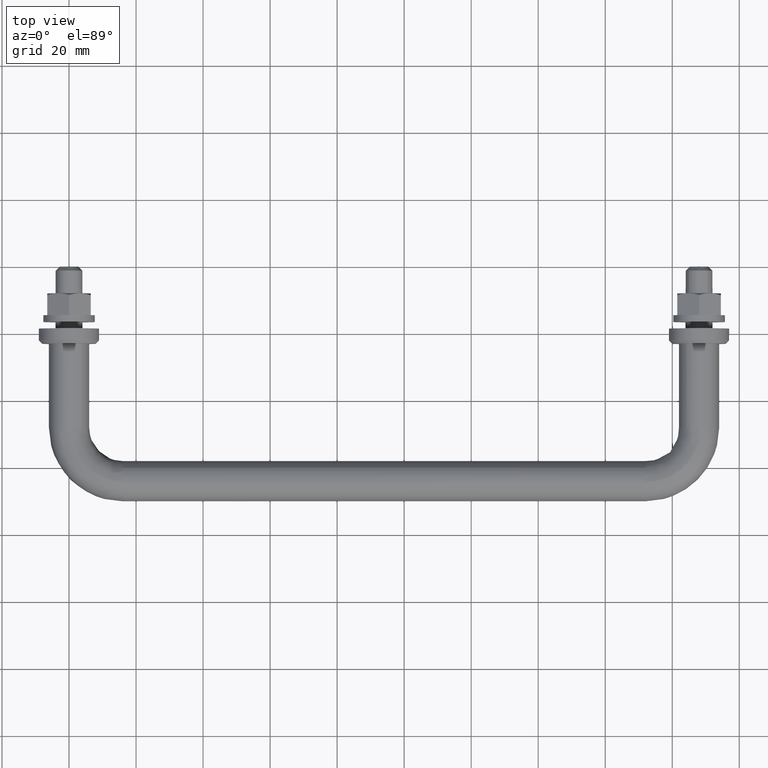
[diagram: clean part render]
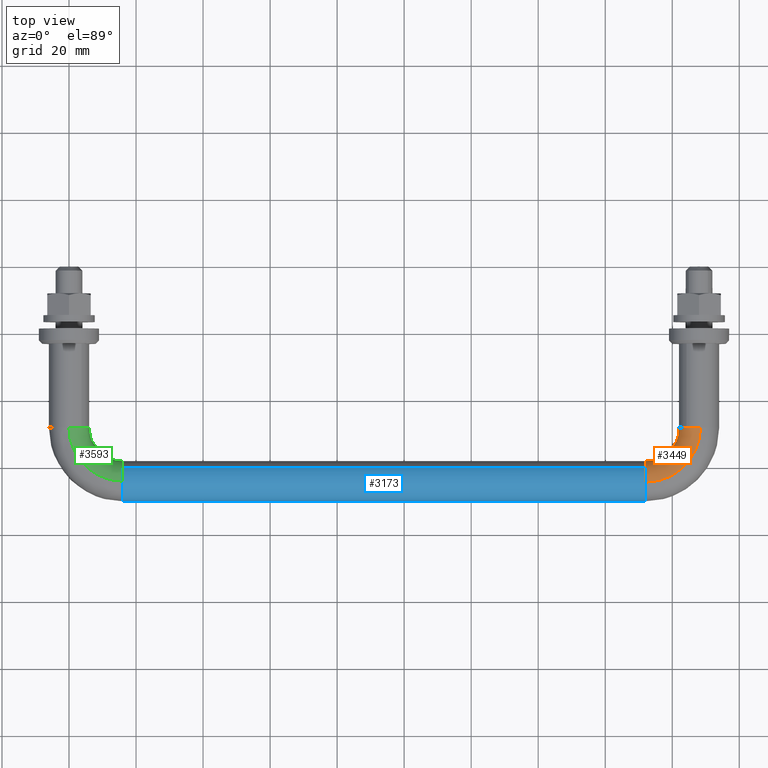
[diagram: same view with three faces highlighted in distinct colors, each labeled with its STEP entity id]
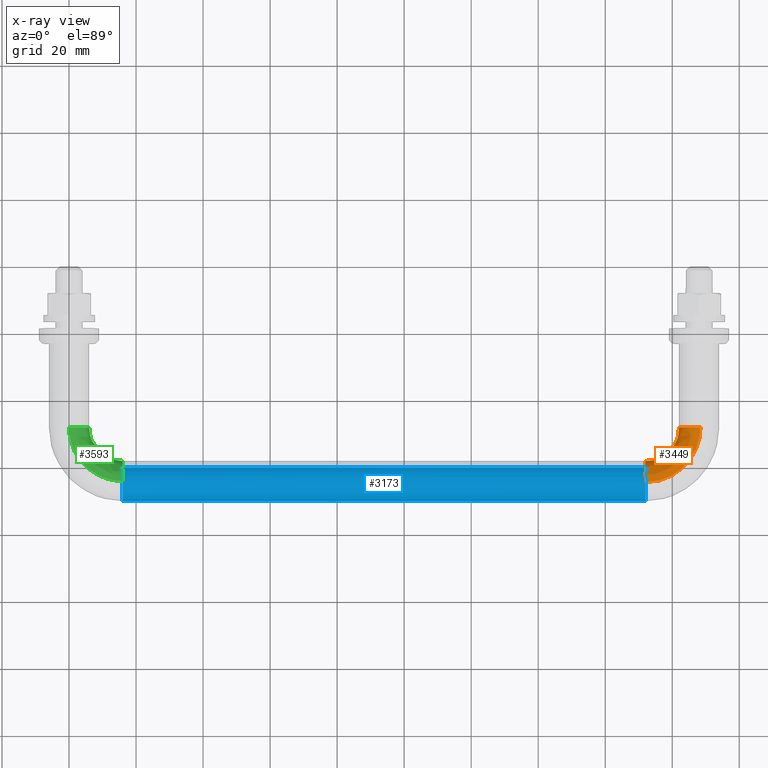
[diagram: x-ray of the same camera — body ghosted, the three highlighted faces saturated]
A machine part, top view with three faces highlighted in distinct colors.
The next image is the same camera in x-ray (body ghosted, the three faces saturated) — at least one of them is partly hidden behind the body in this view.
Their STEP definitions:

[orange] entity #3449 — the highlighted face is a freeform B-spline surface patch.
#2734=CARTESIAN_POINT('',(187.924611933301410,-27.999977257682200,-5.999526367917516));
#2735=VERTEX_POINT('',#2734);
#2753=CARTESIAN_POINT('',(182.0,-28.0,0.0));
#2754=VERTEX_POINT('',#2753);
#2755=CARTESIAN_POINT('',(182.0,-28.0,0.0));
#2756=CARTESIAN_POINT('',(182.000000000000030,-27.999988628841098,-5.925079651262719));
#2757=CARTESIAN_POINT('',(187.924611933301410,-27.999977257682197,-5.999526367917516));
#2765=(BOUNDED_CURVE()B_SPLINE_CURVE(2,(#2755,#2756,#2757),.UNSPECIFIED.,.F.,.U.)B_SPLINE_CURVE_WITH_KNOTS((3,3),(0.0,0.247784535489267),.UNSPECIFIED.)CURVE()GEOMETRIC_REPRESENTATION_ITEM()RATIONAL_B_SPLINE_CURVE((1.0,0.709702359313410,0.994854847036074))REPRESENTATION_ITEM(''));
#2766=EDGE_CURVE('',#2754,#2735,#2765,.T.);
#2768=CARTESIAN_POINT('',(184.264912180171190,-28.0,4.695648941111987));
#2769=VERTEX_POINT('',#2768);
#2770=CARTESIAN_POINT('',(184.264912180171190,-28.0,4.695648941111987));
#2771=CARTESIAN_POINT('',(182.000000000000030,-27.999999999999996,2.894056444900479));
#2772=CARTESIAN_POINT('',(182.0,-28.0,0.0));
#2780=(BOUNDED_CURVE()B_SPLINE_CURVE(2,(#2770,#2771,#2772),.UNSPECIFIED.,.F.,.U.)B_SPLINE_CURVE_WITH_KNOTS((3,3),(0.857863877391648,1.0),.UNSPECIFIED.)CURVE()GEOMETRIC_REPRESENTATION_ITEM()RATIONAL_B_SPLINE_CURVE((0.856305618644005,0.833477174158305,1.0))REPRESENTATION_ITEM(''));
#2781=EDGE_CURVE('',#2769,#2754,#2780,.T.);
#2895=CARTESIAN_POINT('',(188.418399515030300,-28.000000001144201,5.985394042652700));
#2896=VERTEX_POINT('',#2895);
#2897=CARTESIAN_POINT('',(188.418399515030250,-28.000000001144205,5.985394042652700));
#2898=CARTESIAN_POINT('',(188.209454700846320,-27.999999999999993,6.0));
#2899=CARTESIAN_POINT('',(188.0,-28.0,6.0));
#2900=CARTESIAN_POINT('',(185.904706199466230,-28.000000000000004,6.000000000000001));
#2901=CARTESIAN_POINT('',(184.264912180171140,-28.0,4.695648941111987));
#2909=(BOUNDED_CURVE()B_SPLINE_CURVE(2,(#2897,#2898,#2899,#2900,#2901),.UNSPECIFIED.,.F.,.U.)B_SPLINE_CURVE_WITH_KNOTS((3,2,3),(0.737833686214604,0.750000000000000,0.857863877391649),.UNSPECIFIED.)CURVE()GEOMETRIC_REPRESENTATION_ITEM()RATIONAL_B_SPLINE_CURVE((0.972879875709116,0.985746276777203,1.0,0.873629607028242,0.856305618644005))REPRESENTATION_ITEM(''));
#2910=EDGE_CURVE('',#2896,#2769,#2909,.T.);
#2950=CARTESIAN_POINT('',(172.000000000030700,-43.924603760731657,-5.999526265223295));
#2951=VERTEX_POINT('',#2950);
#3023=CARTESIAN_POINT('',(172.0,-40.024283343943772,4.493737539146402));
#3024=VERTEX_POINT('',#3023);
#3030=CARTESIAN_POINT('',(172.0,-38.0,0.0));
#3031=VERTEX_POINT('',#3030);
#3032=CARTESIAN_POINT('',(171.999999999999970,-40.024283343943765,4.493737539146402));
#3033=CARTESIAN_POINT('',(172.000000000000030,-37.999999999999993,2.702805839870650));
#3034=CARTESIAN_POINT('',(172.0,-38.0,0.0));
#3042=(BOUNDED_CURVE()B_SPLINE_CURVE(2,(#3032,#3033,#3034),.UNSPECIFIED.,.F.,.U.)B_SPLINE_CURVE_WITH_KNOTS((3,3),(0.865779765950736,1.0),.UNSPECIFIED.)CURVE()GEOMETRIC_REPRESENTATION_ITEM()RATIONAL_B_SPLINE_CURVE((0.854350179329492,0.842751214477665,1.0))REPRESENTATION_ITEM(''));
#3043=EDGE_CURVE('',#3024,#3031,#3042,.T.);
#3045=CARTESIAN_POINT('',(172.0,-38.0,0.0));
#3046=CARTESIAN_POINT('',(171.999999999999940,-37.999999999999993,-5.925071579506664));
#3047=CARTESIAN_POINT('',(172.000000000030750,-43.924603760731657,-5.999526265223295));
#3055=(BOUNDED_CURVE()B_SPLINE_CURVE(2,(#3045,#3046,#3047),.UNSPECIFIED.,.F.,.U.)B_SPLINE_CURVE_WITH_KNOTS((3,3),(0.0,0.247784295923591),.UNSPECIFIED.)CURVE()GEOMETRIC_REPRESENTATION_ITEM()RATIONAL_B_SPLINE_CURVE((1.0,0.709702639982057,0.994854295648301))REPRESENTATION_ITEM(''));
#3056=EDGE_CURVE('',#3031,#2951,#3055,.T.);
#3094=CARTESIAN_POINT('',(172.000000001094800,-44.418399514859161,5.985394042664661));
#3095=VERTEX_POINT('',#3094);
#3109=CARTESIAN_POINT('',(172.000000001094860,-44.418399514859168,5.985394042664661));
#3110=CARTESIAN_POINT('',(172.000000000000030,-44.209454700674584,6.000000000000001));
#3111=CARTESIAN_POINT('',(172.0,-44.0,6.0));
#3112=CARTESIAN_POINT('',(172.000000000000030,-41.726806121522053,6.000000000000001));
#3113=CARTESIAN_POINT('',(171.999999999999970,-40.024283343943765,4.493737539146402));
#3121=(BOUNDED_CURVE()B_SPLINE_CURVE(2,(#3109,#3110,#3111,#3112,#3113),.UNSPECIFIED.,.F.,.U.)B_SPLINE_CURVE_WITH_KNOTS((3,2,3),(0.737833686224437,0.750000000000000,0.865779765950736),.UNSPECIFIED.)CURVE()GEOMETRIC_REPRESENTATION_ITEM()RATIONAL_B_SPLINE_CURVE((0.972879875729914,0.985746276788723,1.0,0.864355566708882,0.854350179329492))REPRESENTATION_ITEM(''));
#3122=EDGE_CURVE('',#3095,#3024,#3121,.T.);
#3386=CARTESIAN_POINT('',(170.858311015844380,-44.378656167966355,5.985394066133807));
#3387=CARTESIAN_POINT('',(189.691463637596770,-45.691438038754328,5.985394066133804));
#3388=CARTESIAN_POINT('',(188.378654515969630,-26.858287316566017,5.985394066133806));
#3389=CARTESIAN_POINT('',(170.870222679992420,-44.207771580152766,5.997368459328783));
#3390=CARTESIAN_POINT('',(189.506882043079800,-45.506856711319521,5.997368459328781));
#3391=CARTESIAN_POINT('',(188.207769945391850,-26.870199227977380,5.997368459328779));
#3392=CARTESIAN_POINT('',(170.882162468940070,-44.036483514307562,5.999526265222895));
#3393=CARTESIAN_POINT('',(189.321864630333690,-45.321839566286258,5.999526265222895));
#3394=CARTESIAN_POINT('',(188.036481896823260,-26.882139264772281,5.999526265222895));
#3395=CARTESIAN_POINT('',(171.299352535549500,-38.051479934072887,6.074922504523009));
#3396=CARTESIAN_POINT('',(182.857141754125050,-38.857126044273798,6.074922504523014));
#3397=CARTESIAN_POINT('',(182.051478920252630,-27.299337991449018,6.074922504523009));
#3398=CARTESIAN_POINT('',(171.304595376518110,-37.976266201821545,0.075396239300117));
#3399=CARTESIAN_POINT('',(182.775899374070920,-38.775883781774226,0.075396239300117));
#3400=CARTESIAN_POINT('',(181.976265195587560,-27.304580941248997,0.075396239300117));
#3401=CARTESIAN_POINT('',(171.309838217486740,-37.901052469570175,-5.924130025922775));
#3402=CARTESIAN_POINT('',(182.694656994016920,-38.694641519274647,-5.924130025922779));
#3403=CARTESIAN_POINT('',(181.901051470922430,-27.309823891048975,-5.924130025922776));
#3404=CARTESIAN_POINT('',(170.892648150877420,-43.886056049804850,-5.999526265222895));
#3405=CARTESIAN_POINT('',(189.159379870225620,-45.159355041287107,-5.999526265222895));
#3406=CARTESIAN_POINT('',(187.886054447493140,-26.892625164372237,-5.999526265222895));
#3414=(BOUNDED_SURFACE()B_SPLINE_SURFACE(2,2,((#3386,#3389,#3392,#3395,#3398,#3401,#3404),(#3387,#3390,#3393,#3396,#3399,#3402,#3405),(#3388,#3391,#3394,#3397,#3400,#3403,#3406)),.UNSPECIFIED.,.F.,.F.,.U.)B_SPLINE_SURFACE_WITH_KNOTS((3,3),(3,2,2,3),(0.0,29.920493368264712),(0.0,0.397644640654330,10.338770137608639,20.279895634562941),.UNSPECIFIED.)GEOMETRIC_REPRESENTATION_ITEM()RATIONAL_B_SPLINE_SURFACE(((0.895729761376907,0.905606519293506,0.916342124834309,0.647951730357230,0.916342124834309,0.647951730357230,0.916342124834309),(0.587799902987867,0.594281274485770,0.601326242921003,0.425201864074870,0.601326242921003,0.425201864074870,0.601326242921003),(0.895730351866127,0.905607116293752,0.916342728911755,0.647952157504489,0.916342728911755,0.647952157504489,0.916342728911755)))REPRESENTATION_ITEM('')SURFACE());
#3415=ORIENTED_EDGE('',*,*,#2910,.T.);
#3416=ORIENTED_EDGE('',*,*,#2781,.T.);
#3417=ORIENTED_EDGE('',*,*,#2766,.T.);
#3418=CARTESIAN_POINT('',(172.000000000030670,-43.924603760731657,-5.999526265223297));
#3419=CARTESIAN_POINT('',(187.924630589315830,-43.924603760648566,-5.999526316570405));
#3420=CARTESIAN_POINT('',(187.924611933301430,-27.999977257682193,-5.999526367917516));
#3428=(BOUNDED_CURVE()B_SPLINE_CURVE(2,(#3418,#3419,#3420),.UNSPECIFIED.,.F.,.U.)B_SPLINE_CURVE_WITH_KNOTS((3,3),(-1.734750791654397,-0.265247724385492),.UNSPECIFIED.)CURVE()GEOMETRIC_REPRESENTATION_ITEM()RATIONAL_B_SPLINE_CURVE((0.889029723575022,0.628638683265943,0.889030249481114))REPRESENTATION_ITEM(''));
#3429=EDGE_CURVE('',#2951,#2735,#3428,.T.);
#3430=ORIENTED_EDGE('',*,*,#3429,.F.);
#3431=ORIENTED_EDGE('',*,*,#3056,.F.);
#3432=ORIENTED_EDGE('',*,*,#3043,.F.);
#3433=ORIENTED_EDGE('',*,*,#3122,.F.);
#3434=CARTESIAN_POINT('',(172.000000001094830,-44.418399514859161,5.985394042664661));
#3435=CARTESIAN_POINT('',(188.418399507164250,-44.418399507263018,5.985394043042593));
#3436=CARTESIAN_POINT('',(188.418399515030250,-28.000000001144198,5.985394042652700));
#3444=(BOUNDED_CURVE()B_SPLINE_CURVE(2,(#3434,#3435,#3436),.UNSPECIFIED.,.F.,.U.)B_SPLINE_CURVE_WITH_KNOTS((3,3),(-1.734750791519822,-0.265249208486429),.UNSPECIFIED.)CURVE()GEOMETRIC_REPRESENTATION_ITEM()RATIONAL_B_SPLINE_CURVE((0.869031711827253,0.614498216582240,0.869031711825088))REPRESENTATION_ITEM(''));
#3445=EDGE_CURVE('',#3095,#2896,#3444,.T.);
#3446=ORIENTED_EDGE('',*,*,#3445,.T.);
#3447=EDGE_LOOP('',(#3415,#3416,#3417,#3430,#3431,#3432,#3433,#3446));
#3448=FACE_OUTER_BOUND('',#3447,.T.);
#3449=ADVANCED_FACE('',(#3448),#3414,.T.);

[blue] entity #3173 — the highlighted face is a freeform B-spline surface patch.
#2952=CARTESIAN_POINT('',(172.0,-48.467998580238500,-4.004620916760366));
#2953=VERTEX_POINT('',#2952);
#2969=CARTESIAN_POINT('',(16.0,-48.467998533679001,-4.004620968707411));
#2970=VERTEX_POINT('',#2969);
#2971=CARTESIAN_POINT('',(16.0,-48.467998533679001,-4.004620968707411));
#2972=CARTESIAN_POINT('',(172.0,-48.467998580238500,-4.004620916760366));
#2973=QUASI_UNIFORM_CURVE('',1,(#2971,#2972),.UNSPECIFIED.,.F.,.U.);
#2974=EDGE_CURVE('',#2970,#2953,#2973,.T.);
#3008=CARTESIAN_POINT('',(16.0,-40.024283299106493,4.493737499477844));
#3009=VERTEX_POINT('',#3008);
#3023=CARTESIAN_POINT('',(172.0,-40.024283343943772,4.493737539146402));
#3024=VERTEX_POINT('',#3023);
#3025=CARTESIAN_POINT('',(16.0,-40.024283299106493,4.493737499477844));
#3026=CARTESIAN_POINT('',(172.0,-40.024283343943772,4.493737539146402));
#3027=QUASI_UNIFORM_CURVE('',1,(#3025,#3026),.UNSPECIFIED.,.F.,.U.);
#3028=EDGE_CURVE('',#3009,#3024,#3027,.T.);
#3061=CARTESIAN_POINT('',(12.099999999496250,-40.024279710705578,4.493734324734011));
#3062=CARTESIAN_POINT('',(12.099999999496250,-44.518014035439599,8.469454614028436));
#3063=CARTESIAN_POINT('',(12.099999999496250,-48.493734324734007,3.975720289294424));
#3064=CARTESIAN_POINT('',(12.099999999496248,-52.034080247159984,-0.025912832602382));
#3065=CARTESIAN_POINT('',(12.099999999496248,-48.467994806516181,-4.004625127142923));
#3066=CARTESIAN_POINT('',(175.997500001134800,-40.024279710705557,4.493734324734011));
#3067=CARTESIAN_POINT('',(175.997500001134740,-44.518014035439563,8.469454614028436));
#3068=CARTESIAN_POINT('',(175.997500001134800,-48.493734324733992,3.975720289294424));
#3069=CARTESIAN_POINT('',(175.997500001134820,-52.034080247159977,-0.025912832602382));
#3070=CARTESIAN_POINT('',(175.997500001134800,-48.467994806516145,-4.004625127142923));
#3078=(BOUNDED_SURFACE()B_SPLINE_SURFACE(2,1,((#3061,#3066),(#3062,#3067),(#3063,#3068),(#3064,#3069),(#3065,#3070)),.UNSPECIFIED.,.F.,.F.,.U.)B_SPLINE_SURFACE_WITH_KNOTS((3,2,3),(2,2),(0.0,9.941125496954280,19.086960954152222),(0.0,163.897500001638600),.UNSPECIFIED.)GEOMETRIC_REPRESENTATION_ITEM()RATIONAL_B_SPLINE_SURFACE(((1.0,1.0),(0.707106781186548,0.707106781186548),(1.0,1.0),(0.730538238691624,0.730538238691624),(0.956886118190660,0.956886118190660)))REPRESENTATION_ITEM('')SURFACE());
#3079=CARTESIAN_POINT('',(172.0,-49.999999999999993,0.0));
#3080=VERTEX_POINT('',#3079);
#3081=CARTESIAN_POINT('',(171.999999999999970,-48.467998580238500,-4.004620916760366));
#3082=CARTESIAN_POINT('',(171.999999999999970,-50.0,-2.295350473769441));
#3083=CARTESIAN_POINT('',(172.0,-49.999999999999993,0.0));
#3091=(BOUNDED_CURVE()B_SPLINE_CURVE(2,(#3081,#3082,#3083),.UNSPECIFIED.,.F.,.U.)B_SPLINE_CURVE_WITH_KNOTS((3,3),(0.383246101980459,0.500000000000000),.UNSPECIFIED.)CURVE()GEOMETRIC_REPRESENTATION_ITEM()RATIONAL_B_SPLINE_CURVE((0.854190709346819,0.863214300000157,1.0))REPRESENTATION_ITEM(''));
#3092=EDGE_CURVE('',#2953,#3080,#3091,.T.);
#3093=ORIENTED_EDGE('',*,*,#3092,.T.);
#3094=CARTESIAN_POINT('',(172.000000001094800,-44.418399514859161,5.985394042664661));
#3095=VERTEX_POINT('',#3094);
#3096=CARTESIAN_POINT('',(172.0,-49.999999999999993,0.0));
#3097=CARTESIAN_POINT('',(172.000000000000030,-49.999999999999993,5.595221073466878));
#3098=CARTESIAN_POINT('',(172.000000001094780,-44.418399514859161,5.985394042664661));
#3106=(BOUNDED_CURVE()B_SPLINE_CURVE(2,(#3096,#3097,#3098),.UNSPECIFIED.,.F.,.U.)B_SPLINE_CURVE_WITH_KNOTS((3,3),(0.500000000000000,0.737833686224436),.UNSPECIFIED.)CURVE()GEOMETRIC_REPRESENTATION_ITEM()RATIONAL_B_SPLINE_CURVE((1.0,0.721360504397826,0.972879875729912))REPRESENTATION_ITEM(''));
#3107=EDGE_CURVE('',#3080,#3095,#3106,.T.);
#3108=ORIENTED_EDGE('',*,*,#3107,.T.);
#3109=CARTESIAN_POINT('',(172.000000001094860,-44.418399514859168,5.985394042664661));
#3110=CARTESIAN_POINT('',(172.000000000000030,-44.209454700674584,6.000000000000001));
#3111=CARTESIAN_POINT('',(172.0,-44.0,6.0));
#3112=CARTESIAN_POINT('',(172.000000000000030,-41.726806121522053,6.000000000000001));
#3113=CARTESIAN_POINT('',(171.999999999999970,-40.024283343943765,4.493737539146402));
#3121=(BOUNDED_CURVE()B_SPLINE_CURVE(2,(#3109,#3110,#3111,#3112,#3113),.UNSPECIFIED.,.F.,.U.)B_SPLINE_CURVE_WITH_KNOTS((3,2,3),(0.737833686224437,0.750000000000000,0.865779765950736),.UNSPECIFIED.)CURVE()GEOMETRIC_REPRESENTATION_ITEM()RATIONAL_B_SPLINE_CURVE((0.972879875729914,0.985746276788723,1.0,0.864355566708882,0.854350179329492))REPRESENTATION_ITEM(''));
#3122=EDGE_CURVE('',#3095,#3024,#3121,.T.);
#3123=ORIENTED_EDGE('',*,*,#3122,.T.);
#3124=ORIENTED_EDGE('',*,*,#3028,.F.);
#3125=CARTESIAN_POINT('',(15.999999999535239,-44.075396242597783,5.999526265181453));
#3126=VERTEX_POINT('',#3125);
#3127=CARTESIAN_POINT('',(15.999999999535246,-44.075396242597783,5.999526265181453));
#3128=CARTESIAN_POINT('',(16.0,-44.037699611249401,6.0));
#3129=CARTESIAN_POINT('',(16.0,-44.0,6.0));
#3130=CARTESIAN_POINT('',(15.999999999999996,-41.726806087292310,6.0));
#3131=CARTESIAN_POINT('',(16.0,-40.024283299106486,4.493737499477844));
#3139=(BOUNDED_CURVE()B_SPLINE_CURVE(2,(#3127,#3128,#3129,#3130,#3131),.UNSPECIFIED.,.F.,.U.)B_SPLINE_CURVE_WITH_KNOTS((3,2,3),(0.747784295728396,0.750000000000000,0.865779767457664),.UNSPECIFIED.)CURVE()GEOMETRIC_REPRESENTATION_ITEM()RATIONAL_B_SPLINE_CURVE((0.994854295199036,0.997404140975804,1.0,0.864355564943408,0.854350179069043))REPRESENTATION_ITEM(''));
#3140=EDGE_CURVE('',#3126,#3009,#3139,.T.);
#3141=ORIENTED_EDGE('',*,*,#3140,.F.);
#3142=CARTESIAN_POINT('',(16.0,-49.999999999999993,0.0));
#3143=VERTEX_POINT('',#3142);
#3144=CARTESIAN_POINT('',(16.0,-49.999999999999993,0.0));
#3145=CARTESIAN_POINT('',(16.000000000000004,-49.999999999999993,5.925071572929852));
#3146=CARTESIAN_POINT('',(15.999999999535245,-44.075396242597783,5.999526265181453));
#3154=(BOUNDED_CURVE()B_SPLINE_CURVE(2,(#3144,#3145,#3146),.UNSPECIFIED.,.F.,.U.)B_SPLINE_CURVE_WITH_KNOTS((3,3),(0.500000000000000,0.747784295728395),.UNSPECIFIED.)CURVE()GEOMETRIC_REPRESENTATION_ITEM()RATIONAL_B_SPLINE_CURVE((1.0,0.709702640210744,0.994854295199034))REPRESENTATION_ITEM(''));
#3155=EDGE_CURVE('',#3143,#3126,#3154,.T.);
#3156=ORIENTED_EDGE('',*,*,#3155,.F.);
#3157=CARTESIAN_POINT('',(16.000000000000004,-48.467998533679001,-4.004620968707411));
#3158=CARTESIAN_POINT('',(16.0,-49.999999999999986,-2.295350513753448));
#3159=CARTESIAN_POINT('',(16.0,-49.999999999999993,0.0));
#3167=(BOUNDED_CURVE()B_SPLINE_CURVE(2,(#3157,#3158,#3159),.UNSPECIFIED.,.F.,.U.)B_SPLINE_CURVE_WITH_KNOTS((3,3),(0.383246100224852,0.500000000000000),.UNSPECIFIED.)CURVE()GEOMETRIC_REPRESENTATION_ITEM()RATIONAL_B_SPLINE_CURVE((0.854190709075447,0.863214297943335,1.0))REPRESENTATION_ITEM(''));
#3168=EDGE_CURVE('',#2970,#3143,#3167,.T.);
#3169=ORIENTED_EDGE('',*,*,#3168,.F.);
#3170=ORIENTED_EDGE('',*,*,#2974,.T.);
#3171=EDGE_LOOP('',(#3093,#3108,#3123,#3124,#3141,#3156,#3169,#3170));
#3172=FACE_OUTER_BOUND('',#3171,.T.);
#3173=ADVANCED_FACE('',(#3172),#3078,.T.);

[green] entity #3593 — the highlighted face is a freeform B-spline surface patch.
#2976=CARTESIAN_POINT('',(15.999999999610340,-43.581600490287009,-5.985394043024395));
#2977=VERTEX_POINT('',#2976);
#2993=CARTESIAN_POINT('',(16.0,-38.0,0.0));
#2994=VERTEX_POINT('',#2993);
#2995=CARTESIAN_POINT('',(16.0,-38.0,0.0));
#2996=CARTESIAN_POINT('',(15.999999999999998,-37.999999999999993,-5.595221083111795));
#2997=CARTESIAN_POINT('',(15.999999999610345,-43.581600490287016,-5.985394043024395));
#3005=(BOUNDED_CURVE()B_SPLINE_CURVE(2,(#2995,#2996,#2997),.UNSPECIFIED.,.F.,.U.)B_SPLINE_CURVE_WITH_KNOTS((3,3),(0.0,0.237833686520174),.UNSPECIFIED.)CURVE()GEOMETRIC_REPRESENTATION_ITEM()RATIONAL_B_SPLINE_CURVE((1.0,0.721360504051347,0.972879876355423))REPRESENTATION_ITEM(''));
#3006=EDGE_CURVE('',#2994,#2977,#3005,.T.);
#3008=CARTESIAN_POINT('',(16.0,-40.024283299106493,4.493737499477844));
#3009=VERTEX_POINT('',#3008);
#3010=CARTESIAN_POINT('',(16.0,-40.024283299106486,4.493737499477844));
#3011=CARTESIAN_POINT('',(16.000000000000004,-37.999999999999993,2.702805803863420));
#3012=CARTESIAN_POINT('',(16.0,-38.0,0.0));
#3020=(BOUNDED_CURVE()B_SPLINE_CURVE(2,(#3010,#3011,#3012),.UNSPECIFIED.,.F.,.U.)B_SPLINE_CURVE_WITH_KNOTS((3,3),(0.865779767457664,1.0),.UNSPECIFIED.)CURVE()GEOMETRIC_REPRESENTATION_ITEM()RATIONAL_B_SPLINE_CURVE((0.854350179069043,0.842751216243140,1.0))REPRESENTATION_ITEM(''));
#3021=EDGE_CURVE('',#3009,#2994,#3020,.T.);
#3125=CARTESIAN_POINT('',(15.999999999535239,-44.075396242597783,5.999526265181453));
#3126=VERTEX_POINT('',#3125);
#3127=CARTESIAN_POINT('',(15.999999999535246,-44.075396242597783,5.999526265181453));
#3128=CARTESIAN_POINT('',(16.0,-44.037699611249401,6.0));
#3129=CARTESIAN_POINT('',(16.0,-44.0,6.0));
#3130=CARTESIAN_POINT('',(15.999999999999996,-41.726806087292310,6.0));
#3131=CARTESIAN_POINT('',(16.0,-40.024283299106486,4.493737499477844));
#3139=(BOUNDED_CURVE()B_SPLINE_CURVE(2,(#3127,#3128,#3129,#3130,#3131),.UNSPECIFIED.,.F.,.U.)B_SPLINE_CURVE_WITH_KNOTS((3,2,3),(0.747784295728396,0.750000000000000,0.865779767457664),.UNSPECIFIED.)CURVE()GEOMETRIC_REPRESENTATION_ITEM()RATIONAL_B_SPLINE_CURVE((0.994854295199036,0.997404140975804,1.0,0.864355564943408,0.854350179069043))REPRESENTATION_ITEM(''));
#3140=EDGE_CURVE('',#3126,#3009,#3139,.T.);
#3192=CARTESIAN_POINT('',(-0.075396246629108,-28.000000001397801,5.999526265130792));
#3193=VERTEX_POINT('',#3192);
#3194=CARTESIAN_POINT('',(3.735087819828864,-28.0,4.695648941111983));
#3195=VERTEX_POINT('',#3194);
#3196=CARTESIAN_POINT('',(-0.075396246629108,-28.000000001397797,5.999526265130792));
#3197=CARTESIAN_POINT('',(-0.037699615281203,-27.999999999999996,5.999999999999999));
#3198=CARTESIAN_POINT('',(3.428898E-015,-28.0,6.0));
#3199=CARTESIAN_POINT('',(2.095293800533723,-28.0,6.0));
#3200=CARTESIAN_POINT('',(3.735087819828863,-28.000000000000004,4.695648941111982));
#3208=(BOUNDED_CURVE()B_SPLINE_CURVE(2,(#3196,#3197,#3198,#3199,#3200),.UNSPECIFIED.,.F.,.U.)B_SPLINE_CURVE_WITH_KNOTS((3,2,3),(0.747784295492051,0.750000000000000,0.857863877391647),.UNSPECIFIED.)CURVE()GEOMETRIC_REPRESENTATION_ITEM()RATIONAL_B_SPLINE_CURVE((0.994854294655062,0.997404140698909,1.0,0.873629607028244,0.856305618644006))REPRESENTATION_ITEM(''));
#3209=EDGE_CURVE('',#3193,#3195,#3208,.T.);
#3306=CARTESIAN_POINT('',(6.000000000000004,-28.0,0.0));
#3307=VERTEX_POINT('',#3306);
#3308=CARTESIAN_POINT('',(3.735087819828864,-28.0,4.695648941111983));
#3309=CARTESIAN_POINT('',(6.000000000000003,-27.999999999999996,2.894056444900473));
#3310=CARTESIAN_POINT('',(6.000000000000004,-28.0,0.0));
#3318=(BOUNDED_CURVE()B_SPLINE_CURVE(2,(#3308,#3309,#3310),.UNSPECIFIED.,.F.,.U.)B_SPLINE_CURVE_WITH_KNOTS((3,3),(0.857863877391648,1.0),.UNSPECIFIED.)CURVE()GEOMETRIC_REPRESENTATION_ITEM()RATIONAL_B_SPLINE_CURVE((0.856305618644005,0.833477174158305,1.0))REPRESENTATION_ITEM(''));
#3319=EDGE_CURVE('',#3195,#3307,#3318,.T.);
#3321=CARTESIAN_POINT('',(0.418399509453649,-28.000000000001169,-5.985394043042524));
#3322=VERTEX_POINT('',#3321);
#3323=CARTESIAN_POINT('',(6.000000000000004,-28.0,0.0));
#3324=CARTESIAN_POINT('',(6.000000000000003,-27.999999999999993,-5.595221083597852));
#3325=CARTESIAN_POINT('',(0.418399509453649,-28.000000000001165,-5.985394043042524));
#3333=(BOUNDED_CURVE()B_SPLINE_CURVE(2,(#3323,#3324,#3325),.UNSPECIFIED.,.F.,.U.)B_SPLINE_CURVE_WITH_KNOTS((3,3),(0.0,0.237833686535077),.UNSPECIFIED.)CURVE()GEOMETRIC_REPRESENTATION_ITEM()RATIONAL_B_SPLINE_CURVE((1.0,0.721360504033886,0.972879876386946))REPRESENTATION_ITEM(''));
#3334=EDGE_CURVE('',#3307,#3322,#3333,.T.);
#3528=CARTESIAN_POINT('',(-0.075396246629108,-28.000000001397801,5.999526265130792));
#3529=CARTESIAN_POINT('',(-0.075396236504506,-44.075396238370594,5.999526265222894));
#3530=CARTESIAN_POINT('',(15.999999999535250,-44.075396242597783,5.999526265181453));
#3538=(BOUNDED_CURVE()B_SPLINE_CURVE(2,(#3528,#3529,#3530),.UNSPECIFIED.,.F.,.U.)B_SPLINE_CURVE_WITH_KNOTS((3,3),(-1.744561813132473,-0.255438186745294),.UNSPECIFIED.)CURVE()GEOMETRIC_REPRESENTATION_ITEM()RATIONAL_B_SPLINE_CURVE((0.894678509977967,0.632633241475806,0.894678510020986))REPRESENTATION_ITEM(''));
#3539=EDGE_CURVE('',#3193,#3126,#3538,.T.);
#3544=CARTESIAN_POINT('',(0.418399509453649,-28.000000000001169,-5.985394043042524));
#3545=CARTESIAN_POINT('',(0.418399509454987,-43.581600489768043,-5.985394043042594));
#3546=CARTESIAN_POINT('',(15.999999999610342,-43.581600490287009,-5.985394043024395));
#3554=(BOUNDED_CURVE()B_SPLINE_CURVE(2,(#3544,#3545,#3546),.UNSPECIFIED.,.F.,.U.)B_SPLINE_CURVE_WITH_KNOTS((3,3),(-1.744561813315432,-0.255438186737073),.UNSPECIFIED.)CURVE()GEOMETRIC_REPRESENTATION_ITEM()RATIONAL_B_SPLINE_CURVE((0.874553433413147,0.618402663285538,0.874553433395084))REPRESENTATION_ITEM(''));
#3555=EDGE_CURVE('',#3322,#2977,#3554,.T.);
#3560=CARTESIAN_POINT('',(-0.036483567885711,-26.882163237571998,5.999526265222896));
#3561=CARTESIAN_POINT('',(-1.321836769248059,-45.321837244897431,5.999526265222896));
#3562=CARTESIAN_POINT('',(17.117837202782201,-44.036483537190442,5.999526265222895));
#3563=CARTESIAN_POINT('',(5.948520032344958,-27.299353017318939,6.074922504523007));
#3564=CARTESIAN_POINT('',(5.142875708876957,-38.857124589254489,6.074922504523005));
#3565=CARTESIAN_POINT('',(16.700647258689905,-38.051479948415611,6.074922504523006));
#3566=CARTESIAN_POINT('',(6.023733764847594,-27.304595854682560,0.075396239300112));
#3567=CARTESIAN_POINT('',(5.224117958257964,-38.775882337642635,0.075396239300112));
#3568=CARTESIAN_POINT('',(16.695404419260946,-37.976266216056942,0.075396239300112));
#3569=CARTESIAN_POINT('',(6.094762111864237,-27.309546946181744,-5.590277027038187));
#3570=CARTESIAN_POINT('',(5.300839355926196,-38.699160937867653,-5.590277027038189));
#3571=CARTESIAN_POINT('',(16.690453325811365,-37.905237869176247,-5.590277027038187));
#3572=CARTESIAN_POINT('',(0.456116881452277,-26.916500371964812,-5.985394043042593));
#3573=CARTESIAN_POINT('',(-0.789753501755532,-44.789753962794158,-5.985394043042592));
#3574=CARTESIAN_POINT('',(17.083500054862824,-43.543883088795340,-5.985394043042594));
#3582=(BOUNDED_SURFACE()B_SPLINE_SURFACE(2,2,((#3560,#3563,#3566,#3569,#3572),(#3561,#3564,#3567,#3570,#3573),(#3562,#3565,#3568,#3571,#3574)),.UNSPECIFIED.,.F.,.F.,.U.)B_SPLINE_SURFACE_WITH_KNOTS((3,3),(3,2,3),(0.0,29.295383694434790),(0.0,9.941125496954280,19.484605974030391),.UNSPECIFIED.)GEOMETRIC_REPRESENTATION_ITEM()RATIONAL_B_SPLINE_SURFACE(((0.922164430830710,0.652068722409428,0.922164430830710,0.662872550746279,0.901421080423955),(0.605147314876259,0.427903769965834,0.605147314876259,0.434993511762250,0.591535010627138),(0.922164442367337,0.652068730567055,0.922164442367337,0.662872559039067,0.901421091701076)))REPRESENTATION_ITEM('')SURFACE());
#3583=ORIENTED_EDGE('',*,*,#3006,.T.);
#3584=ORIENTED_EDGE('',*,*,#3555,.F.);
#3585=ORIENTED_EDGE('',*,*,#3334,.F.);
#3586=ORIENTED_EDGE('',*,*,#3319,.F.);
#3587=ORIENTED_EDGE('',*,*,#3209,.F.);
#3588=ORIENTED_EDGE('',*,*,#3539,.T.);
#3589=ORIENTED_EDGE('',*,*,#3140,.T.);
#3590=ORIENTED_EDGE('',*,*,#3021,.T.);
#3591=EDGE_LOOP('',(#3583,#3584,#3585,#3586,#3587,#3588,#3589,#3590));
#3592=FACE_OUTER_BOUND('',#3591,.T.);
#3593=ADVANCED_FACE('',(#3592),#3582,.T.);